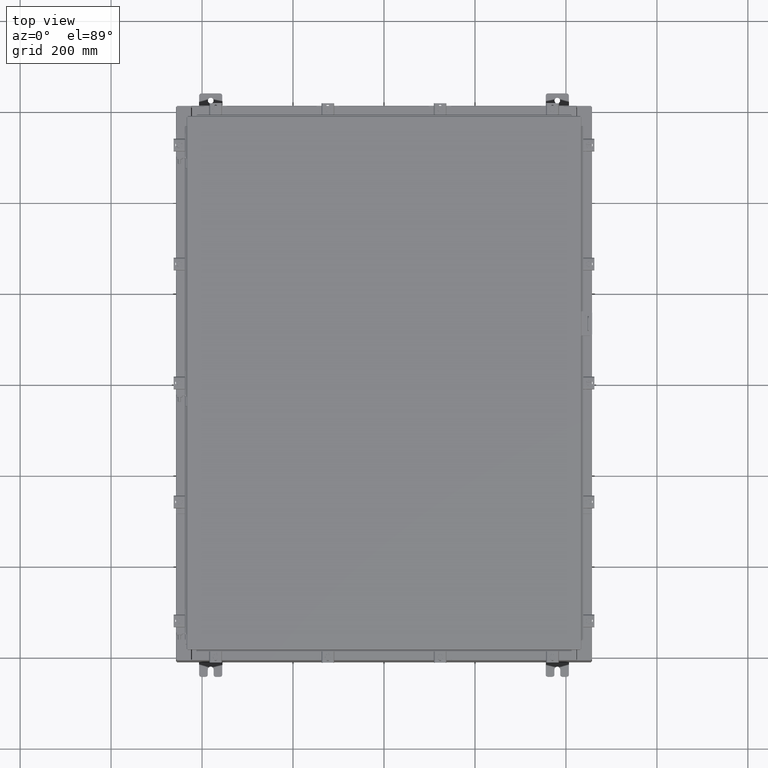
[diagram: clean part render]
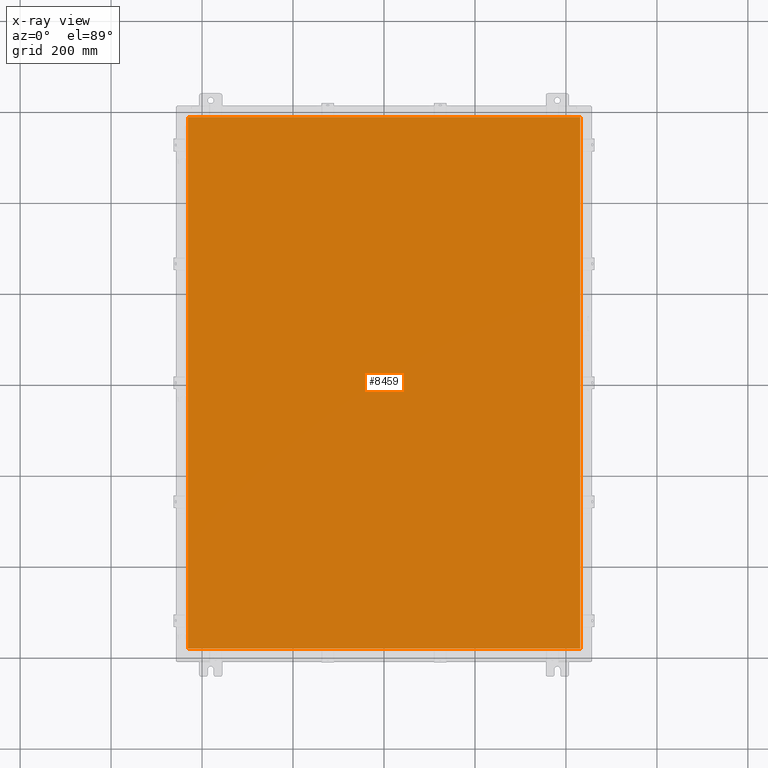
[diagram: x-ray — body ghosted, one internal face saturated and labeled with its STEP entity id]
A machine part, top view, then the same camera in x-ray: the body is ghosted and one INTERNAL B-rep face — a face not visible from any outside direction — is saturated and labeled: STEP entity #8459.
In plain terms, the highlighted planar face has unit normal (0, 0, -1).
Its self-contained STEP definition (entity closure, byte-faithful):
#187 = LINE ( 'NONE', #24996, #2204 ) ;
#210 = DIRECTION ( 'NONE',  ( -1.000000000000000000, 0.0000000000000000000, -0.0000000000000000000 ) ) ;
#509 = VERTEX_POINT ( 'NONE', #4879 ) ;
#555 = CARTESIAN_POINT ( 'NONE',  ( -16.99029999999999800, 23.00629999999999600, -0.07470000000000019700 ) ) ;
#828 = CARTESIAN_POINT ( 'NONE',  ( 16.99030000000000100, -23.00629999999999600, -0.07470000000000129300 ) ) ;
#1247 = VECTOR ( 'NONE', #13576, 39.37007874015748100 ) ;
#1687 = VECTOR ( 'NONE', #20711, 39.37007874015748100 ) ;
#2204 = VECTOR ( 'NONE', #10094, 39.37007874015748100 ) ;
#2344 = LINE ( 'NONE', #14291, #1687 ) ;
#2492 = ORIENTED_EDGE ( 'NONE', *, *, #25634, .F. ) ;
#4879 = CARTESIAN_POINT ( 'NONE',  ( -16.99029999999999800, 23.00629999999999600, -0.07470000000000000300 ) ) ;
#6217 = LINE ( 'NONE', #828, #1247 ) ;
#6978 = AXIS2_PLACEMENT_3D ( 'NONE', #25714, #12964, #210 ) ;
#7471 = FACE_OUTER_BOUND ( 'NONE', #20282, .T. ) ;
#8459 = ADVANCED_FACE ( 'NONE', ( #7471 ), #21457, .T. ) ;
#9311 = EDGE_CURVE ( 'NONE', #509, #25510, #18160, .T. ) ;
#10094 = DIRECTION ( 'NONE',  ( -1.000000000000000000, -0.0000000000000000000, -0.0000000000000000000 ) ) ;
#11677 = CARTESIAN_POINT ( 'NONE',  ( 16.99030000000000100, 23.00629999999999600, -0.07470000000000000300 ) ) ;
#12068 = ORIENTED_EDGE ( 'NONE', *, *, #21907, .F. ) ;
#12964 = DIRECTION ( 'NONE',  ( 0.0000000000000000000, 0.0000000000000000000, -1.000000000000000000 ) ) ;
#13125 = VECTOR ( 'NONE', #21787, 39.37007874015748100 ) ;
#13576 = DIRECTION ( 'NONE',  ( 0.0000000000000000000, 1.000000000000000000, 0.0000000000000000000 ) ) ;
#14011 = ORIENTED_EDGE ( 'NONE', *, *, #9311, .F. ) ;
#14291 = CARTESIAN_POINT ( 'NONE',  ( -16.99029999999999800, -23.00630000000000000, -0.07469999999999797600 ) ) ;
#17102 = CARTESIAN_POINT ( 'NONE',  ( 16.99030000000000100, -23.00630000000000000, -0.07470000000000000300 ) ) ;
#18160 = LINE ( 'NONE', #555, #13125 ) ;
#18333 = CARTESIAN_POINT ( 'NONE',  ( -16.99029999999999800, -23.00629999999999600, -0.07470000000000000300 ) ) ;
#18456 = EDGE_CURVE ( 'NONE', #25510, #24381, #2344, .T. ) ;
#20282 = EDGE_LOOP ( 'NONE', ( #12068, #21200, #14011, #2492 ) ) ;
#20711 = DIRECTION ( 'NONE',  ( 1.000000000000000000, -0.0000000000000000000, -0.0000000000000000000 ) ) ;
#21200 = ORIENTED_EDGE ( 'NONE', *, *, #18456, .F. ) ;
#21457 = PLANE ( 'NONE',  #6978 ) ;
#21787 = DIRECTION ( 'NONE',  ( 0.0000000000000000000, -1.000000000000000000, 0.0000000000000000000 ) ) ;
#21907 = EDGE_CURVE ( 'NONE', #24381, #25429, #6217, .T. ) ;
#24381 = VERTEX_POINT ( 'NONE', #17102 ) ;
#24996 = CARTESIAN_POINT ( 'NONE',  ( 16.99029999999999800, 23.00630000000000000, -0.07469999999999804600 ) ) ;
#25429 = VERTEX_POINT ( 'NONE', #11677 ) ;
#25510 = VERTEX_POINT ( 'NONE', #18333 ) ;
#25634 = EDGE_CURVE ( 'NONE', #25429, #509, #187, .T. ) ;
#25714 = CARTESIAN_POINT ( 'NONE',  ( 0.0000000000000000000, 0.0000000000000000000, -0.07470000000000000300 ) ) ;